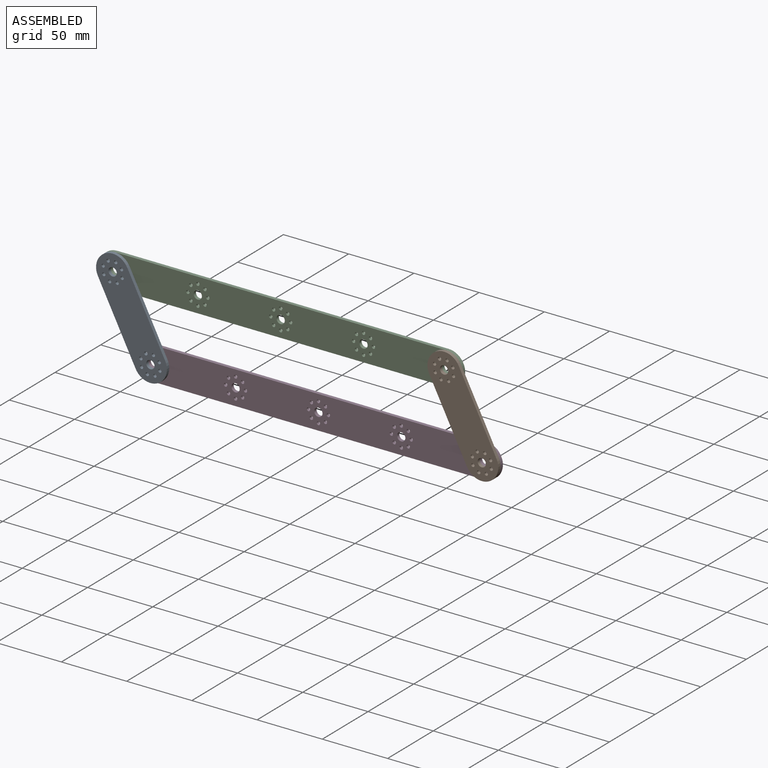
[diagram: assembled view]
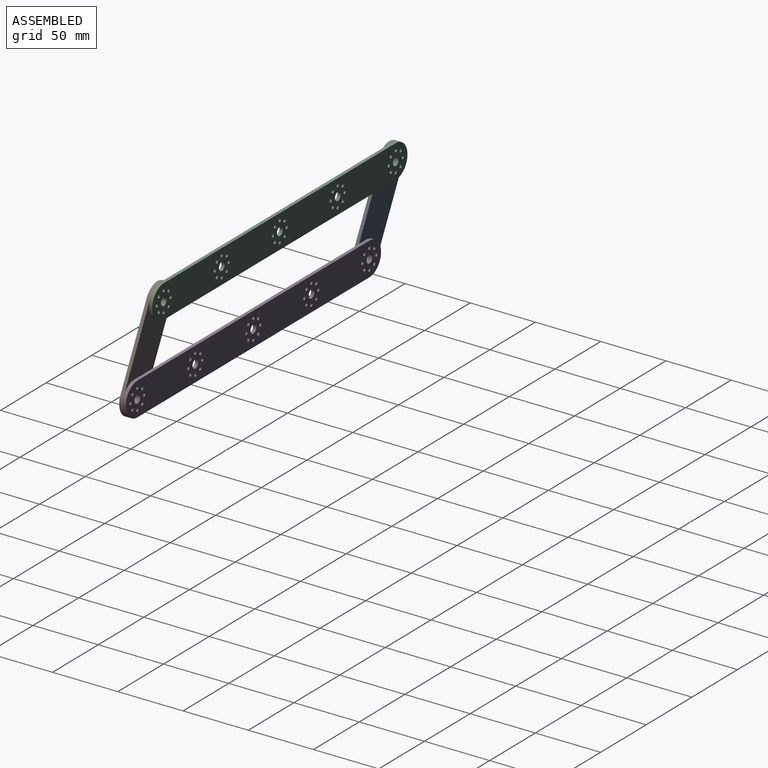
[diagram: assembled view, second angle]
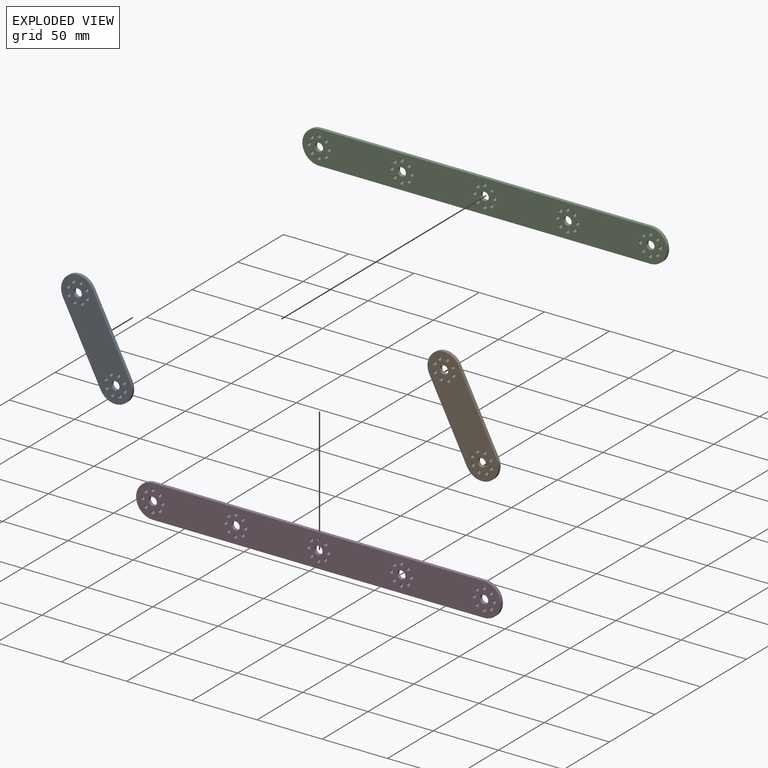
[diagram: exploded view]
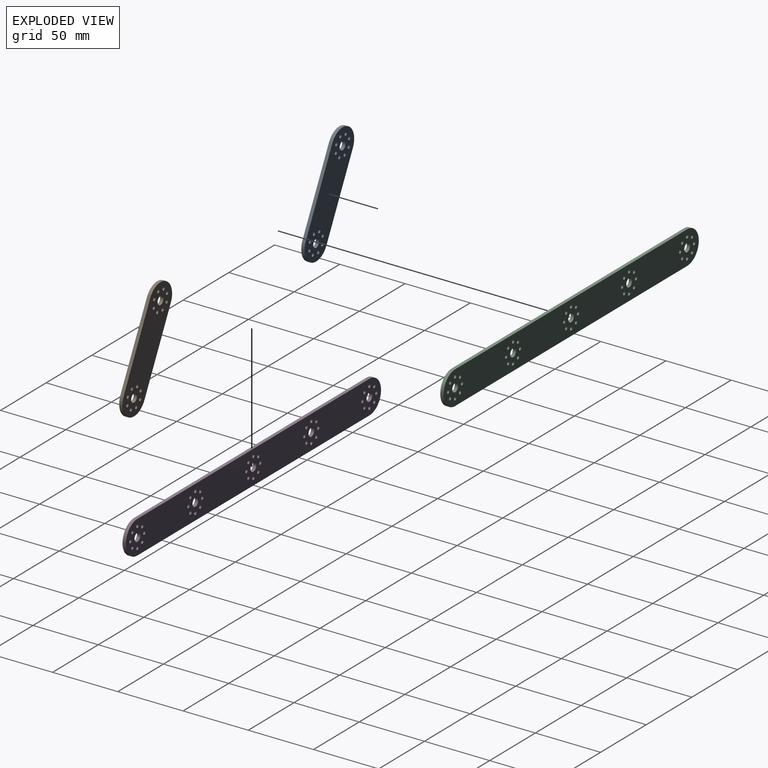
[diagram: exploded view, second angle]
ASSEMBLY  parts=4 mates=7
PART A: 24 faces, bbox 88.9x2.5x25.4 mm
  f0: cylinder r=1.27mm len=2.54mm, axis (0,1,0), area 20.3mm2, adj f20,f21
  f1: cylinder r=1.27mm len=2.54mm, axis (0,1,0), area 20.3mm2, adj f20,f21
  f2: cylinder r=1.27mm len=2.54mm, axis (0,1,0), area 20.3mm2, adj f20,f21
  f3: cylinder r=1.27mm len=2.54mm, axis (0,1,0), area 20.3mm2, adj f20,f21
  f4: cylinder r=1.27mm len=2.54mm, axis (0,1,0), area 20.3mm2, adj f20,f21
  f5: cylinder r=1.27mm len=2.54mm, axis (0,1,0), area 20.3mm2, adj f20,f21
  f6: cylinder r=1.27mm len=2.54mm, axis (0,1,0), area 20.3mm2, adj f20,f21
  f7: cylinder r=1.27mm len=2.54mm, axis (0,1,0), area 20.3mm2, adj f20,f21
  f8: cylinder r=3.17mm len=6.35mm, axis (0,1,0), area 50.7mm2, adj f20,f21
  f9: cylinder r=1.27mm len=2.54mm, axis (0,1,0), area 20.3mm2, adj f20,f21
  f10: cylinder r=1.27mm len=2.54mm, axis (0,1,0), area 20.3mm2, adj f20,f21
  f11: cylinder r=1.27mm len=2.54mm, axis (0,1,0), area 20.3mm2, adj f20,f21
  f12: cylinder r=1.27mm len=2.54mm, axis (0,1,0), area 20.3mm2, adj f20,f21
  f13: cylinder r=1.27mm len=2.54mm, axis (0,1,0), area 20.3mm2, adj f20,f21
  f14: cylinder r=1.27mm len=2.54mm, axis (0,1,0), area 20.3mm2, adj f20,f21
  f15: cylinder r=1.27mm len=2.54mm, axis (0,1,0), area 20.3mm2, adj f20,f21
  f16: plane 63.5x2.54mm, normal (0,0,1), area 161.3mm2, adj f17,f19,f20,f21
  f17: cylinder r=12.7mm len=25.4mm, axis (0,1,0), area 101.3mm2, adj f16,f18,f20,f21
  f18: plane 63.5x2.54mm, normal (0,0,-1), area 161.3mm2, adj f17,f19,f20,f21
  f19: cylinder r=12.7mm len=25.4mm, axis (0,1,0), area 101.3mm2, adj f16,f18,f20,f21
  f20: plane 88.9x25.4mm, normal (0,-1,0), area 1975.2mm2, adj f0,f1,f2,f3,f4,f5,f6,f7
  f21: plane 88.9x25.4mm, normal (0,1,0), area 1975.2mm2, adj f0,f1,f2,f3,f4,f5,f6,f7
  f22: cylinder r=3.17mm len=6.35mm, axis (0,1,0), area 50.7mm2, adj f20,f21
  f23: cylinder r=1.27mm len=2.54mm, axis (0,1,0), area 20.3mm2, adj f20,f21
PART B: same geometry as A
PART C: 51 faces, bbox 279.4x2.5x25.4 mm
  f0: cylinder r=1.27mm len=2.54mm, axis (0,1,0), area 20.3mm2, adj f47,f48
  f1: cylinder r=1.27mm len=2.54mm, axis (0,1,0), area 20.3mm2, adj f47,f48
  f2: cylinder r=1.27mm len=2.54mm, axis (0,1,0), area 20.3mm2, adj f47,f48
  f3: cylinder r=1.27mm len=2.54mm, axis (0,1,0), area 20.3mm2, adj f47,f48
  f4: cylinder r=1.27mm len=2.54mm, axis (0,1,0), area 20.3mm2, adj f47,f48
  f5: cylinder r=1.27mm len=2.54mm, axis (0,1,0), area 20.3mm2, adj f47,f48
  f6: cylinder r=1.27mm len=2.54mm, axis (0,1,0), area 20.3mm2, adj f47,f48
  f7: cylinder r=1.27mm len=2.54mm, axis (0,1,0), area 20.3mm2, adj f47,f48
  f8: cylinder r=3.17mm len=6.35mm, axis (0,1,0), area 50.7mm2, adj f47,f48
  f9: cylinder r=1.27mm len=2.54mm, axis (0,1,0), area 20.3mm2, adj f47,f48
  f10: cylinder r=1.27mm len=2.54mm, axis (0,1,0), area 20.3mm2, adj f47,f48
  f11: cylinder r=1.27mm len=2.54mm, axis (0,1,0), area 20.3mm2, adj f47,f48
  f12: cylinder r=1.27mm len=2.54mm, axis (0,1,0), area 20.3mm2, adj f47,f48
  f13: cylinder r=1.27mm len=2.54mm, axis (0,1,0), area 20.3mm2, adj f47,f48
  f14: cylinder r=1.27mm len=2.54mm, axis (0,1,0), area 20.3mm2, adj f47,f48
  f15: cylinder r=1.27mm len=2.54mm, axis (0,1,0), area 20.3mm2, adj f47,f48
  f16: cylinder r=1.27mm len=2.54mm, axis (0,1,0), area 20.3mm2, adj f47,f48
  f17: cylinder r=3.17mm len=6.35mm, axis (0,1,0), area 50.7mm2, adj f47,f48
  f18: cylinder r=1.27mm len=2.54mm, axis (0,1,0), area 20.3mm2, adj f47,f48
  f19: cylinder r=1.27mm len=2.54mm, axis (0,1,0), area 20.3mm2, adj f47,f48
  f20: cylinder r=1.27mm len=2.54mm, axis (0,1,0), area 20.3mm2, adj f47,f48
  f21: cylinder r=1.27mm len=2.54mm, axis (0,1,0), area 20.3mm2, adj f47,f48
  f22: cylinder r=1.27mm len=2.54mm, axis (0,1,0), area 20.3mm2, adj f47,f48
  f23: cylinder r=1.27mm len=2.54mm, axis (0,1,0), area 20.3mm2, adj f47,f48
  f24: cylinder r=1.27mm len=2.54mm, axis (0,1,0), area 20.3mm2, adj f47,f48
  f25: cylinder r=1.27mm len=2.54mm, axis (0,1,0), area 20.3mm2, adj f47,f48
  f26: cylinder r=3.17mm len=6.35mm, axis (0,1,0), area 50.7mm2, adj f47,f48
  f27: cylinder r=1.27mm len=2.54mm, axis (0,1,0), area 20.3mm2, adj f47,f48
  f28: cylinder r=1.27mm len=2.54mm, axis (0,1,0), area 20.3mm2, adj f47,f48
  f29: cylinder r=1.27mm len=2.54mm, axis (0,1,0), area 20.3mm2, adj f47,f48
  f30: cylinder r=1.27mm len=2.54mm, axis (0,1,0), area 20.3mm2, adj f47,f48
  f31: cylinder r=1.27mm len=2.54mm, axis (0,1,0), area 20.3mm2, adj f47,f48
  f32: cylinder r=1.27mm len=2.54mm, axis (0,1,0), area 20.3mm2, adj f47,f48
  f33: cylinder r=1.27mm len=2.54mm, axis (0,1,0), area 20.3mm2, adj f47,f48
  f34: cylinder r=1.27mm len=2.54mm, axis (0,1,0), area 20.3mm2, adj f47,f48
  f35: cylinder r=3.17mm len=6.35mm, axis (0,1,0), area 50.7mm2, adj f47,f48
  f36: cylinder r=1.27mm len=2.54mm, axis (0,1,0), area 20.3mm2, adj f47,f48
  f37: cylinder r=1.27mm len=2.54mm, axis (0,1,0), area 20.3mm2, adj f47,f48
  f38: cylinder r=1.27mm len=2.54mm, axis (0,1,0), area 20.3mm2, adj f47,f48
  f39: cylinder r=1.27mm len=2.54mm, axis (0,1,0), area 20.3mm2, adj f47,f48
  f40: cylinder r=1.27mm len=2.54mm, axis (0,1,0), area 20.3mm2, adj f47,f48
  f41: cylinder r=1.27mm len=2.54mm, axis (0,1,0), area 20.3mm2, adj f47,f48
  f42: cylinder r=1.27mm len=2.54mm, axis (0,1,0), area 20.3mm2, adj f47,f48
  f43: plane 254x2.54mm, normal (0,0,1), area 645.2mm2, adj f44,f46,f47,f48
  f44: cylinder r=12.7mm len=25.4mm, axis (0,1,0), area 101.3mm2, adj f43,f45,f47,f48
  f45: plane 254x2.54mm, normal (0,0,-1), area 645.2mm2, adj f44,f46,f47,f48
  f46: cylinder r=12.7mm len=25.4mm, axis (0,1,0), area 101.3mm2, adj f43,f45,f47,f48
  f47: plane 279.4x25.4mm, normal (0,-1,0), area 6597.3mm2, adj f0,f1,f2,f3,f4,f5,f6,f7
  f48: plane 279.4x25.4mm, normal (0,1,0), area 6597.3mm2, adj f0,f1,f2,f3,f4,f5,f6,f7
  f49: cylinder r=3.17mm len=6.35mm, axis (0,1,0), area 50.7mm2, adj f47,f48
  f50: cylinder r=1.27mm len=2.54mm, axis (0,1,0), area 20.3mm2, adj f47,f48
PART D: same geometry as C
PLACE A rot(axis=(0,-1,0),117.1deg) t=(-368.3,-2.54,0)mm
PLACE B rot(axis=(0,-1,0),117.1deg) t=(-114.3,-2.54,0)mm
PLACE C t=(-397.22,0,56.53)mm
PLACE D t=(-368.3,0,0)mm fixed
MATE cylindrical A.f17 <-> D.f44  axis (0,-1,0) through (-368.3,-5.08,0)mm
MATE planar D.f26 <-> B.f21  axis (0,-1,0) through (-241.3,-2.54,0)mm
MATE cylindrical B.f17 <-> D.f46  axis (0,-1,0) through (-114.3,-5.08,0)mm
MATE planar D.f26 <-> A.f21  axis (0,-1,0) through (-241.3,-2.54,0)mm
MATE cylindrical B.f8 <-> C.f8  axis (0,-1,0) through (-143.22,-5.08,56.53)mm
MATE planar C.f33 <-> A.f6  axis (0,-1,0) through (-341.34,-2.54,56.53)mm
MATE cylindrical C.f49 <-> A.f8  axis (0,1,0) through (-397.22,0,56.53)mm
